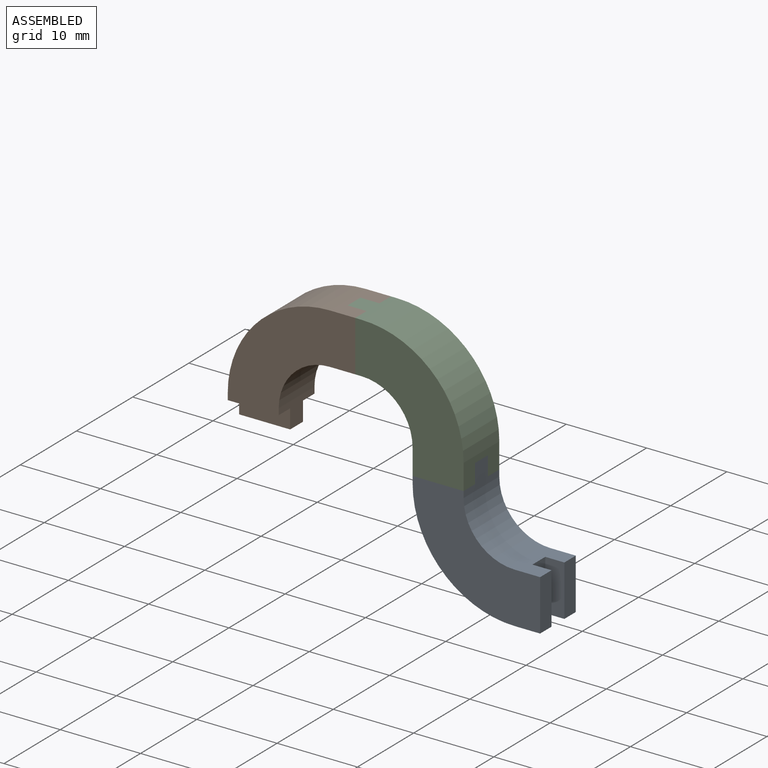
[diagram: assembled view]
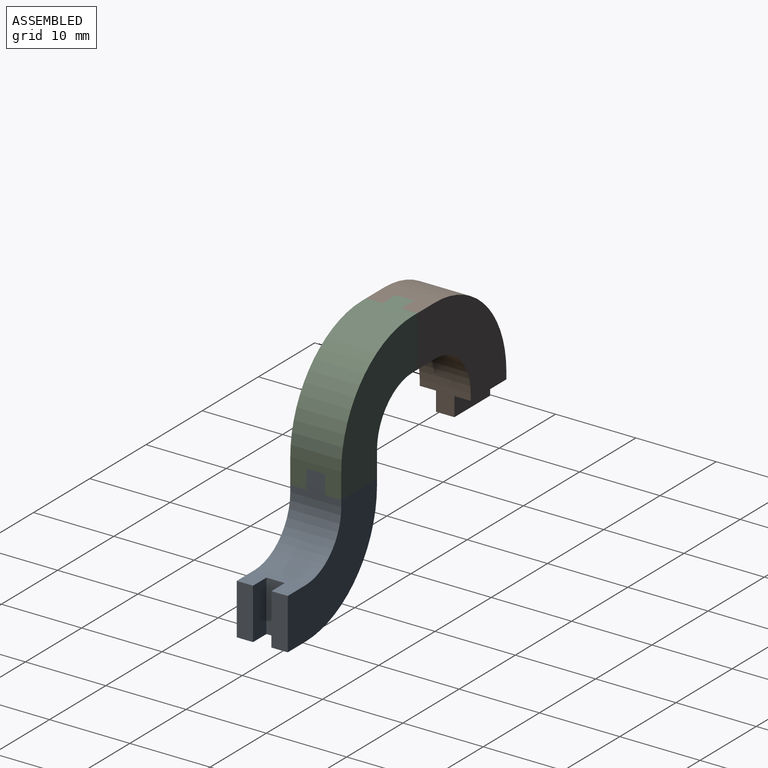
[diagram: assembled view, second angle]
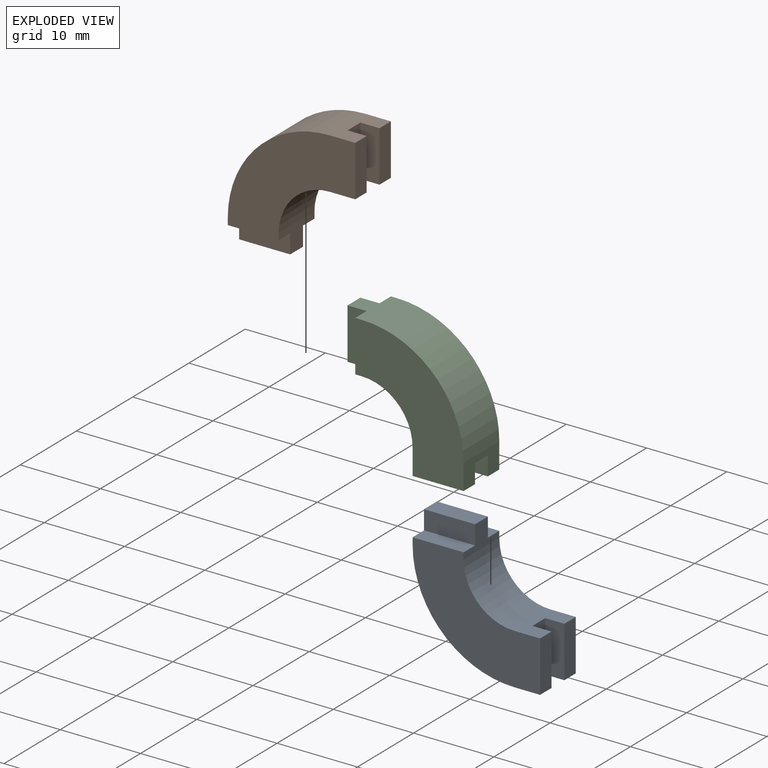
[diagram: exploded view]
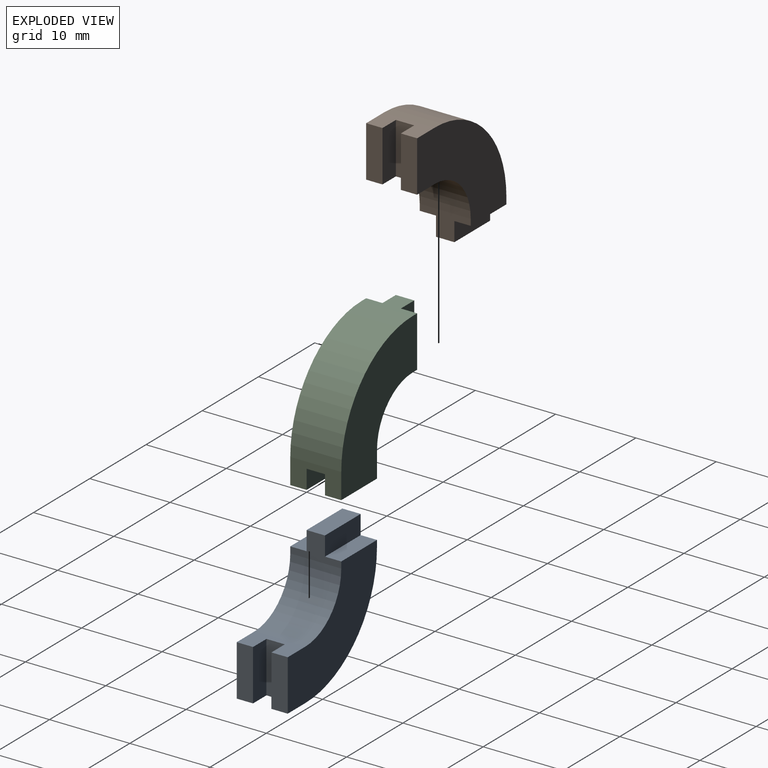
[diagram: exploded view, second angle]
ASSEMBLY  parts=3 mates=2
PART A: 18 faces, bbox 22.5x6.4x10.5 mm
  f0: plane 4.49x4.49mm, normal (-0.71,0,-0.71), area 14.5mm2, adj f1,f6,f14,f16
  f1: plane 6.35x2.25mm, normal (0.71,0,-0.71), area 10.5mm2, adj f0,f7,f9,f10,f14,f15,f16,f17
  f2: plane 4.49x4.49mm, normal (0.71,0,-0.71), area 12.9mm2, adj f3,f4,f9,f11
  f3: plane 6.35x2.25mm, normal (-0.71,0,-0.71), area 14.7mm2, adj f2,f7,f8,f9,f10,f11,f12,f13
  f4: plane 6.35x2.25mm, normal (0.71,0,0.71), area 14.7mm2, adj f2,f5,f8,f9,f10,f11,f12,f13
  f5: cylinder r=12.7mm len=17.96mm, axis (0,1,0), area 126.7mm2, adj f4,f6,f9,f10
  f6: plane 6.35x2.25mm, normal (-0.71,0,0.71), area 10.5mm2, adj f0,f5,f9,f10,f14,f15,f16,f17
  f7: cylinder r=6.35mm len=8.98mm, axis (0,1,0), area 63.3mm2, adj f1,f3,f9,f10
  f8: plane 4.49x4.49mm, normal (0.71,0,-0.71), area 12.9mm2, adj f3,f4,f10,f12
  f9: plane 20.77x10.46mm, normal (0,-1,0), area 120.2mm2, adj f1,f2,f3,f4,f5,f6,f7,f17
  f10: plane 20.77x10.46mm, normal (0,1,0), area 120.2mm2, adj f1,f3,f4,f5,f6,f7,f8,f15
  f11: plane 6.17x6.17mm, normal (0,1,0), area 15.1mm2, adj f2,f3,f4,f13
  f12: plane 6.17x6.17mm, normal (0,-1,0), area 15.1mm2, adj f3,f4,f8,f13
  f13: plane 4.49x4.49mm, normal (0.71,0,-0.71), area 14.5mm2, adj f3,f4,f11,f12
  f14: plane 6.17x6.17mm, normal (0,1,0), area 15.1mm2, adj f0,f1,f6,f15
  f15: plane 4.49x4.49mm, normal (-0.71,0,-0.71), area 12.9mm2, adj f1,f6,f10,f14
  f16: plane 6.17x6.17mm, normal (0,-1,0), area 15.1mm2, adj f0,f1,f6,f17
  f17: plane 4.49x4.49mm, normal (-0.71,0,-0.71), area 12.9mm2, adj f1,f6,f9,f16
PART B: same geometry as A
PART C: same geometry as A
PLACE A rot(axis=(-0.92,0,0.38),180deg) t=(23.02,-6.35,-3.97)mm
PLACE B rot(axis=(0,-1,0),45deg) t=(0,0,0)mm fixed
PLACE C rot(axis=(0,1,0),45deg) t=(3.97,0,0)mm
MATE fastened C.f0 <-> B.f13  axis (-1,0,0) through (0.79,-3.18,9.53)mm
MATE fastened A.f0 <-> C.f13  axis (0,0,1) through (13.49,-3.18,-0.79)mm
